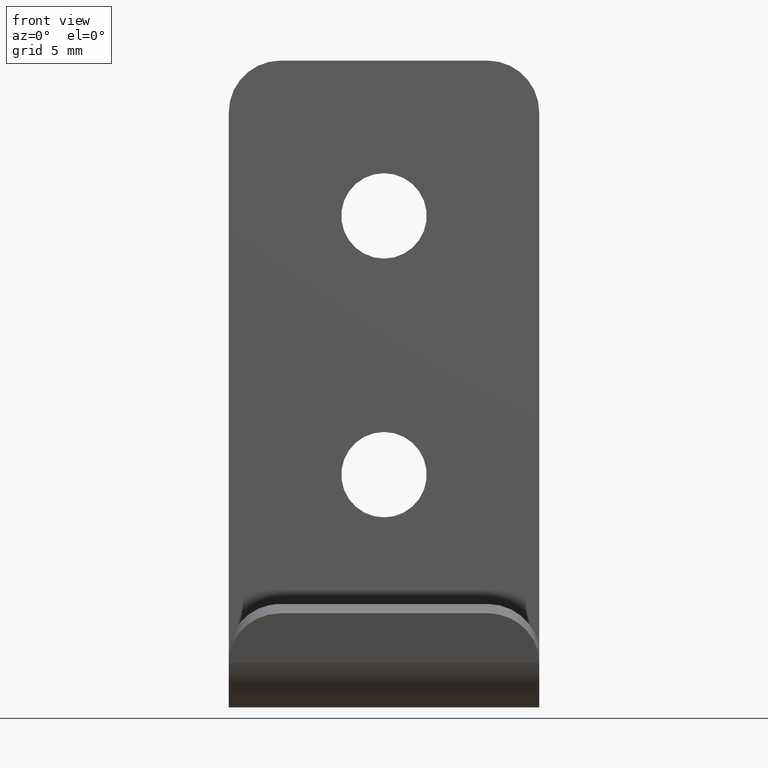
[diagram: clean part render]
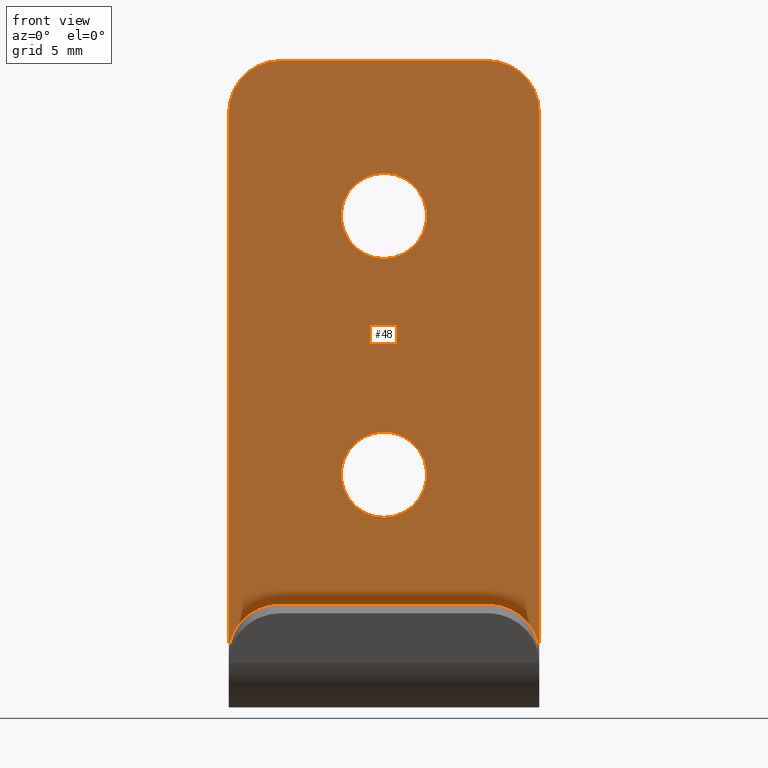
[diagram: same view with one face highlighted and labeled with its STEP entity id]
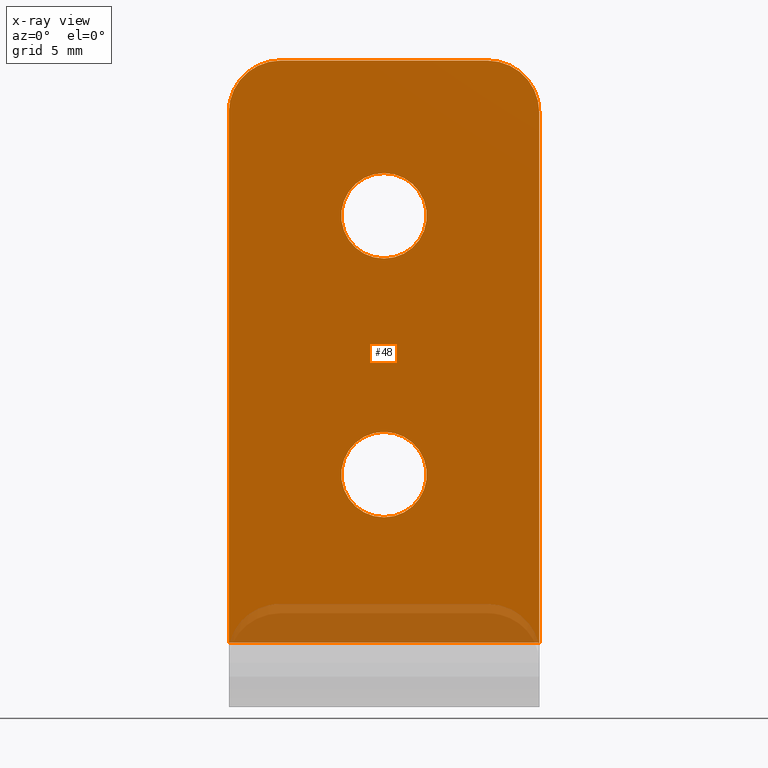
[diagram: x-ray of the same camera — body ghosted, the highlighted face saturated]
A machine part, front view. The second image highlights one B-rep face of the part: STEP entity #48.
The next image is the same camera in x-ray: the body ghosted, the highlighted face saturated — about 6% of this face is hidden behind the body in this view.
In plain terms, the highlighted planar face has unit normal (0, 1, -0).
Its self-contained STEP definition (entity closure, byte-faithful):
#48=ADVANCED_FACE('',(#139,#140,#141),#138,.F.);
#138=PLANE('',#285);
#139=FACE_OUTER_BOUND('',#286,.T.);
#140=FACE_BOUND('',#287,.T.);
#141=FACE_BOUND('',#288,.T.);
#282=CARTESIAN_POINT('',(-7.20000000000E+00,1.50000000000E+00,2.50000000000E-01));
#283=DIRECTION('',(0.00000000000E+00,1.00000000000E+00,-6.26427921881E-16));
#284=DIRECTION('',(0.00000000000E+00,6.26427921881E-16,1.00000000000E+00));
#285=AXIS2_PLACEMENT_3D('',#282,#283,#284);
#286=EDGE_LOOP('',(#380,#381,#382,#383,#384,#385));
#287=EDGE_LOOP('',(#386,#387));
#288=EDGE_LOOP('',(#388,#389));
#380=ORIENTED_EDGE('',*,*,#459,.T.);
#381=ORIENTED_EDGE('',*,*,#460,.T.);
#382=ORIENTED_EDGE('',*,*,#443,.T.);
#383=ORIENTED_EDGE('',*,*,#458,.F.);
#384=ORIENTED_EDGE('',*,*,#455,.F.);
#385=ORIENTED_EDGE('',*,*,#461,.T.);
#386=ORIENTED_EDGE('',*,*,#462,.F.);
#387=ORIENTED_EDGE('',*,*,#463,.F.);
#388=ORIENTED_EDGE('',*,*,#464,.F.);
#389=ORIENTED_EDGE('',*,*,#465,.F.);
#443=EDGE_CURVE('',#557,#550,#558,.T.);
#455=EDGE_CURVE('',#630,#637,#638,.T.);
#458=EDGE_CURVE('',#637,#550,#656,.T.);
#459=EDGE_CURVE('',#662,#663,#664,.T.);
#460=EDGE_CURVE('',#663,#557,#670,.T.);
#461=EDGE_CURVE('',#630,#662,#676,.T.);
#462=EDGE_CURVE('',#682,#683,#684,.T.);
#463=EDGE_CURVE('',#683,#682,#690,.T.);
#464=EDGE_CURVE('',#696,#697,#698,.T.);
#465=EDGE_CURVE('',#697,#696,#704,.T.);
#550=VERTEX_POINT('',#840);
#557=VERTEX_POINT('',#845);
#558=LINE('',#846,#847);
#630=VERTEX_POINT('',#887);
#637=VERTEX_POINT('',#891);
#638=LINE('',#892,#893);
#656=LINE('',#902,#903);
#662=VERTEX_POINT('',#905);
#663=VERTEX_POINT('',#906);
#664=LINE('',#907,#908);
#670=CIRCLE('',#913,2.00000000000E+00);
#676=CIRCLE('',#917,2.00000000000E+00);
#682=VERTEX_POINT('',#918);
#683=VERTEX_POINT('',#919);
#684=CIRCLE('',#923,1.65000000000E+00);
#690=CIRCLE('',#927,1.65000000000E+00);
#696=VERTEX_POINT('',#928);
#697=VERTEX_POINT('',#929);
#698=CIRCLE('',#933,1.65000000000E+00);
#704=CIRCLE('',#937,1.65000000000E+00);
#840=CARTESIAN_POINT('',(-6.00000000000E+00,1.50000000000E+00,2.50000000000E+00));
#845=CARTESIAN_POINT('',(-6.00000000000E+00,1.50000000000E+00,2.30000000000E+01));
#846=CARTESIAN_POINT('',(-6.00000000000E+00,1.50000000000E+00,2.30000000000E+01));
#847=VECTOR('',#848,2.05000000000E+01);
#848=DIRECTION('',(0.00000000000E+00,-6.28223760276E-16,-1.00000000000E+00));
#887=CARTESIAN_POINT('',(6.00000000000E+00,1.50000000000E+00,2.30000000000E+01));
#891=CARTESIAN_POINT('',(6.00000000000E+00,1.50000000000E+00,2.50000000000E+00));
#892=CARTESIAN_POINT('',(6.00000000000E+00,1.50000000000E+00,2.30000000000E+01));
#893=VECTOR('',#894,2.05000000000E+01);
#894=DIRECTION('',(0.00000000000E+00,-6.28223760276E-16,-1.00000000000E+00));
#902=CARTESIAN_POINT('',(6.00000000000E+00,1.50000000000E+00,2.50000000000E+00));
#903=VECTOR('',#904,1.20000000000E+01);
#904=DIRECTION('',(-1.00000000000E+00,0.00000000000E+00,0.00000000000E+00));
#905=CARTESIAN_POINT('',(4.00000000000E+00,1.50000000000E+00,2.50000000000E+01));
#906=CARTESIAN_POINT('',(-4.00000000000E+00,1.50000000000E+00,2.50000000000E+01));
#907=CARTESIAN_POINT('',(4.00000000000E+00,1.50000000000E+00,2.50000000000E+01));
#908=VECTOR('',#909,8.00000000000E+00);
#909=DIRECTION('',(-1.00000000000E+00,0.00000000000E+00,0.00000000000E+00));
#910=CARTESIAN_POINT('',(-4.00000000000E+00,1.50000000000E+00,2.30000000000E+01));
#911=DIRECTION('',(0.00000000000E+00,-1.00000000000E+00,6.26427921881E-16));
#912=DIRECTION('',(-0.00000000000E+00,-6.26427921881E-16,-1.00000000000E+00));
#913=AXIS2_PLACEMENT_3D('',#910,#911,#912);
#914=CARTESIAN_POINT('',(4.00000000000E+00,1.50000000000E+00,2.30000000000E+01));
#915=DIRECTION('',(0.00000000000E+00,-1.00000000000E+00,6.26427921881E-16));
#916=DIRECTION('',(-0.00000000000E+00,-6.26427921881E-16,-1.00000000000E+00));
#917=AXIS2_PLACEMENT_3D('',#914,#915,#916);
#918=CARTESIAN_POINT('',(2.22044604925E-16,1.50000000000E+00,1.73500000000E+01));
#919=CARTESIAN_POINT('',(0.00000000000E+00,1.50000000000E+00,2.06500000000E+01));
#920=CARTESIAN_POINT('',(0.00000000000E+00,1.50000000000E+00,1.90000000000E+01));
#921=DIRECTION('',(0.00000000000E+00,-1.00000000000E+00,0.00000000000E+00));
#922=DIRECTION('',(-1.22460635382E-16,0.00000000000E+00,1.00000000000E+00));
#923=AXIS2_PLACEMENT_3D('',#920,#921,#922);
#924=CARTESIAN_POINT('',(0.00000000000E+00,1.50000000000E+00,1.90000000000E+01));
#925=DIRECTION('',(0.00000000000E+00,-1.00000000000E+00,0.00000000000E+00));
#926=DIRECTION('',(-1.22460635382E-16,0.00000000000E+00,1.00000000000E+00));
#927=AXIS2_PLACEMENT_3D('',#924,#925,#926);
#928=CARTESIAN_POINT('',(2.22044604925E-16,1.50000000000E+00,7.35000000000E+00));
#929=CARTESIAN_POINT('',(0.00000000000E+00,1.50000000000E+00,1.06500000000E+01));
#930=CARTESIAN_POINT('',(0.00000000000E+00,1.50000000000E+00,9.00000000000E+00));
#931=DIRECTION('',(0.00000000000E+00,-1.00000000000E+00,0.00000000000E+00));
#932=DIRECTION('',(-1.22460635382E-16,0.00000000000E+00,1.00000000000E+00));
#933=AXIS2_PLACEMENT_3D('',#930,#931,#932);
#934=CARTESIAN_POINT('',(0.00000000000E+00,1.50000000000E+00,9.00000000000E+00));
#935=DIRECTION('',(0.00000000000E+00,-1.00000000000E+00,0.00000000000E+00));
#936=DIRECTION('',(-1.22460635382E-16,0.00000000000E+00,1.00000000000E+00));
#937=AXIS2_PLACEMENT_3D('',#934,#935,#936);